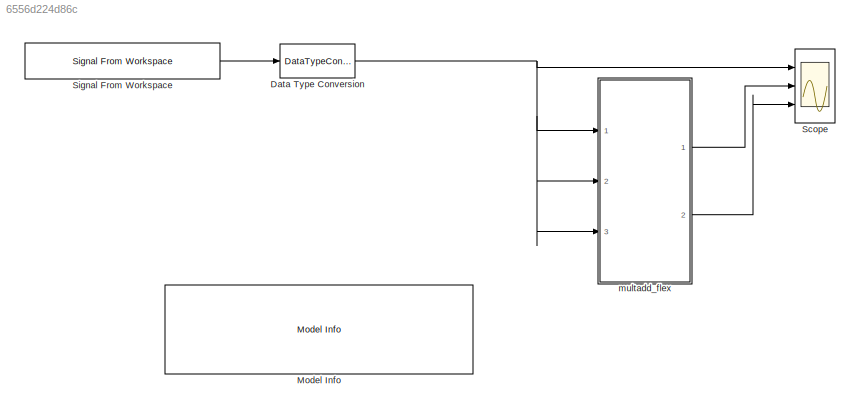
MODEL slx_6556d224d86c
KIND model
CONFIG AbsTol = auto
CONFIG EnableMultiTasking = off
CONFIG FixedStep = auto
CONFIG MaxStep = auto
CONFIG MinStep = auto
CONFIG RelTol = 1e-3
CONFIG SampleTimeConstraint = Unconstrained
CONFIG Solver = FixedStepDiscrete
CONFIG SolverName = FixedStepDiscrete
CONFIG StartTime = 0.0
CONFIG StopTime = 1000
BLOCK [DataTypeConversion] Data Type Conversion
  ConvertRealWorld = Stored Integer (SI)
  OutDataTypeStr = fixdt(1, 8, 4)
  RndMeth = Floor
  SaturateOnIntegerOverflow = off
BLOCK [Reference] Model Info  REF=simulink/Model-Wide
Utilities/Model Info
  Ports = []
  SourceBlock = simulink/Model-Wide\nUtilities/Model Info
  SourceProductBaseCode = SL
  SourceProductName = Simulink
  SourceType = CMBlock
BLOCK [Scope] Scope
  Floating = off
  NumInputPorts = 3
  Ports = [3]
  ScopeSpecificationString = Simulink.scopes.TimeScopeBlockCfg('CurrentConfiguration', extmgr.ConfigurationSet(extmgr.Configuration('Core','General UI',true),extmgr.Configuration('Core','Source UI',true),extmgr.Configuration('Sources','WiredSimulink',true),extmgr.Configuration('Visuals','Time Domain',true,'SerializedDisplays',{struct('MinYLimReal','-9.99219','MaxYLimReal','9.92969','YLabelReal','','MinYLimMag','0.00000','MaxY...<+2751ch>
BLOCK [Reference] Signal From Workspace  REF=dspsrcs4/Signal From
Workspace
  Ports = [0, 1]
  SourceBlock = dspsrcs4/Signal From\nWorkspace
  SourceProductBaseCode = DS
  SourceProductName = DSP System Toolbox
  SourceType = Signal From Workspace
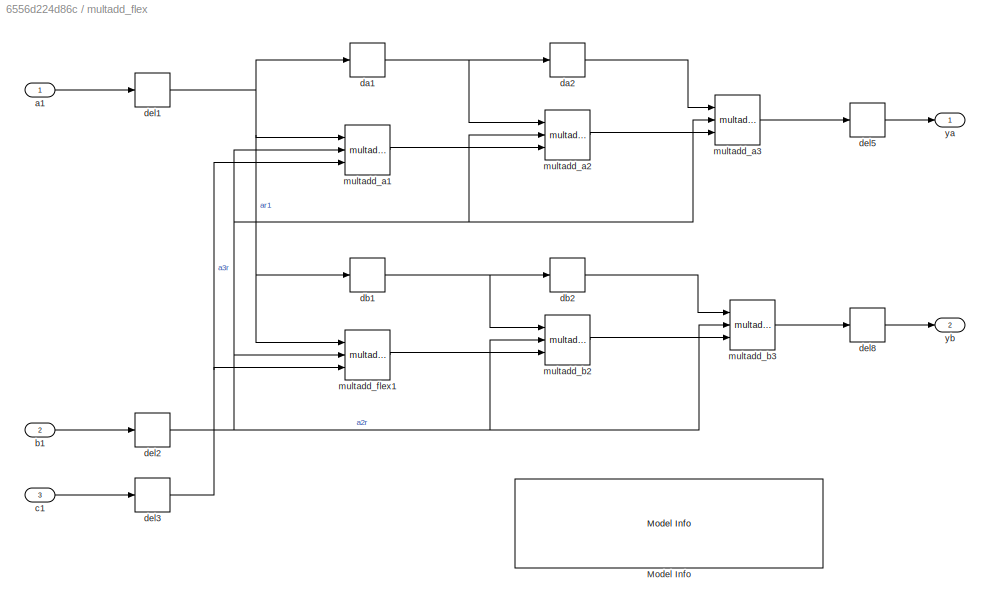
BLOCK [SubSystem] multadd_flex
  Ports = [3, 2]
  RequestExecContextInheritance = off
BLOCK [Reference] multadd_flex/Model Info  REF=simulink/Model-Wide
Utilities/Model Info
  Ports = []
  SourceBlock = simulink/Model-Wide\nUtilities/Model Info
  SourceProductBaseCode = SL
  SourceProductName = Simulink
  SourceType = CMBlock
BLOCK [Inport] multadd_flex/a1
  IconDisplay = Port number
BLOCK [Inport] multadd_flex/b1
  IconDisplay = Port number
  Port = 2
BLOCK [Inport] multadd_flex/c1
  IconDisplay = Port number
  Port = 3
BLOCK [Delay] multadd_flex/da1
  InitialCondition = 0
  InputPortMap = u0
  Ports = [1, 1]
BLOCK [Delay] multadd_flex/da2
  InitialCondition = 0
  InputPortMap = u0
  Ports = [1, 1]
BLOCK [Delay] multadd_flex/db1
  InitialCondition = 0
  InputPortMap = u0
  Ports = [1, 1]
BLOCK [Delay] multadd_flex/db2
  InitialCondition = 0
  InputPortMap = u0
  Ports = [1, 1]
BLOCK [Delay] multadd_flex/del1
  DelayLength = 3
  InitialCondition = 0
  InputPortMap = u0
  Ports = [1, 1]
BLOCK [Delay] multadd_flex/del2
  DelayLength = 3
  InitialCondition = 0
  InputPortMap = u0
  Ports = [1, 1]
BLOCK [Delay] multadd_flex/del3
  DelayLength = 3
  InitialCondition = 0
  InputPortMap = u0
  Ports = [1, 1]
BLOCK [Delay] multadd_flex/del5
  DelayLength = 3
  InitialCondition = 0
  InputPortMap = u0
  Ports = [1, 1]
BLOCK [Delay] multadd_flex/del8
  DelayLength = 3
  InitialCondition = 0
  InputPortMap = u0
  Ports = [1, 1]
BLOCK [Reference] multadd_flex/multadd_a1  REF=lib_dsphdlmath_v1/multadd_flex  (lib defined in slx_0bd5eb6a7fa8)
  Ports = [3, 1]
  SourceBlock = lib_dsphdlmath_v1/multadd_flex
  SourceProductName = DSPHDL Library
  SourceType = Flexible Multiply-Add
BLOCK [Reference] multadd_flex/multadd_a2  REF=lib_dsphdlmath_v1/multadd_flex  (lib defined in slx_0bd5eb6a7fa8)
  Ports = [3, 1]
  SourceBlock = lib_dsphdlmath_v1/multadd_flex
  SourceProductName = DSPHDL Library
  SourceType = Flexible Multiply-Add
BLOCK [Reference] multadd_flex/multadd_a3  REF=lib_dsphdlmath_v1/multadd_flex  (lib defined in slx_0bd5eb6a7fa8)
  Ports = [3, 1]
  SourceBlock = lib_dsphdlmath_v1/multadd_flex
  SourceProductName = DSPHDL Library
  SourceType = Flexible Multiply-Add
BLOCK [Reference] multadd_flex/multadd_b2  REF=lib_dsphdlmath_v1/multadd_flex  (lib defined in slx_0bd5eb6a7fa8)
  Ports = [3, 1]
  SourceBlock = lib_dsphdlmath_v1/multadd_flex
  SourceProductName = DSPHDL Library
  SourceType = Flexible Multiply-Add
BLOCK [Reference] multadd_flex/multadd_b3  REF=lib_dsphdlmath_v1/multadd_flex  (lib defined in slx_0bd5eb6a7fa8)
  Ports = [3, 1]
  SourceBlock = lib_dsphdlmath_v1/multadd_flex
  SourceProductName = DSPHDL Library
  SourceType = Flexible Multiply-Add
BLOCK [Reference] multadd_flex/multadd_flex1  REF=lib_dsphdlmath_v1/multadd_flex  (lib defined in slx_0bd5eb6a7fa8)
  Ports = [3, 1]
  SourceBlock = lib_dsphdlmath_v1/multadd_flex
  SourceProductName = DSPHDL Library
  SourceType = Flexible Multiply-Add
BLOCK [Outport] multadd_flex/ya
  IconDisplay = Port number
BLOCK [Outport] multadd_flex/yb
  IconDisplay = Port number
  Port = 2
NET Data Type Conversion:1 -> Scope:1, multadd_flex:1, multadd_flex:2, multadd_flex:3
LINE Signal From Workspace:1 -> Data Type Conversion:1
LINE multadd_flex/a1:1 -> multadd_flex/del1:1
LINE multadd_flex/b1:1 -> multadd_flex/del2:1
LINE multadd_flex/c1:1 -> multadd_flex/del3:1
NET multadd_flex/da1:1 -> multadd_flex/da2:1, multadd_flex/multadd_a2:1
LINE multadd_flex/da2:1 -> multadd_flex/multadd_a3:1
NET multadd_flex/db1:1 -> multadd_flex/db2:1, multadd_flex/multadd_b2:1
LINE multadd_flex/db2:1 -> multadd_flex/multadd_b3:1
NET multadd_flex/del1:1 -> multadd_flex/da1:1, multadd_flex/db1:1, multadd_flex/multadd_a1:1, multadd_flex/multadd_flex1:1
NET multadd_flex/del2:1 -> multadd_flex/multadd_a1:2, multadd_flex/multadd_a2:2, multadd_flex/multadd_a3:2, multadd_flex/multadd_b2:2, multadd_flex/multadd_b3:2, multadd_flex/multadd_flex1:2
NET multadd_flex/del3:1 -> multadd_flex/multadd_a1:3, multadd_flex/multadd_flex1:3
LINE multadd_flex/del5:1 -> multadd_flex/ya:1
LINE multadd_flex/del8:1 -> multadd_flex/yb:1
LINE multadd_flex/multadd_a1:1 -> multadd_flex/multadd_a2:3
LINE multadd_flex/multadd_a2:1 -> multadd_flex/multadd_a3:3
LINE multadd_flex/multadd_a3:1 -> multadd_flex/del5:1
LINE multadd_flex/multadd_b2:1 -> multadd_flex/multadd_b3:3
LINE multadd_flex/multadd_b3:1 -> multadd_flex/del8:1
LINE multadd_flex/multadd_flex1:1 -> multadd_flex/multadd_b2:3
LINE multadd_flex:1 -> Scope:2
LINE multadd_flex:2 -> Scope:3
note: NET lines group one-source signal fan-out (src -> all destinations, sorted); 1:1 wires keep LINE
